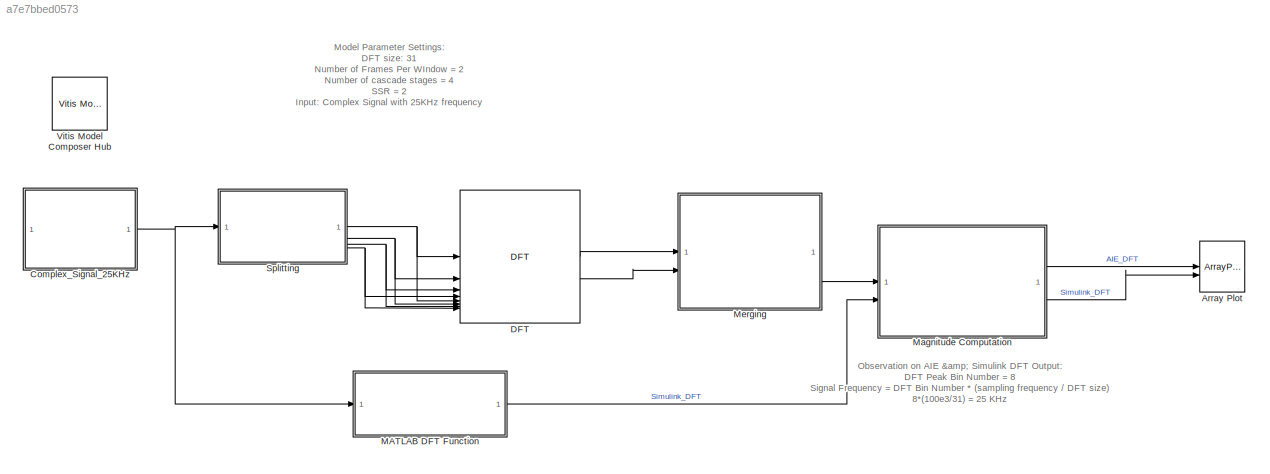
MODEL slx_a7e7bbed0573
KIND model
CONFIG AbsTol = auto
CONFIG EnableMultiTasking = off
CONFIG FixedStep = auto
CONFIG MaxStep = auto
CONFIG MinStep = auto
CONFIG RelTol = 1e-3
CONFIG SampleTimeConstraint = Unconstrained
CONFIG SolverName = VariableStepAuto
CONFIG StartFcn = FramesPerWindow = 2;
CONFIG StartTime = 0.0
CONFIG StopTime = 0.1
BLOCK [ArrayPlot] Array Plot
  GraphicalSettings = {"Style":{"BackgroundColor":[0.12941176470588237,0.12941176470588237,0.12941176470588237],"AxesColor":[0.070588235294117646,0.070588235294117646,0.070588235294117646],"LabelsColor":[0.85098039215686272,0.85098039215686272,0.85098039215686272],"PreserveColors":false,"Visible":[true,true],"LineStyle":["-","-"],"LineColor":[[1,0.90980392156862744,0.39215686274509803],[0.14901960784313725,0.5490196078...<+635ch>
  NumInputPorts = 2
  ScopeFrameLocation = window
  ShowLegend = on
  Visible = on
  WasSavedAsWebScope = on
  WindowPosition = [1.000000,1.000000,1280.000000,744.000000,]
  YLimits = [-36.25 346.25]
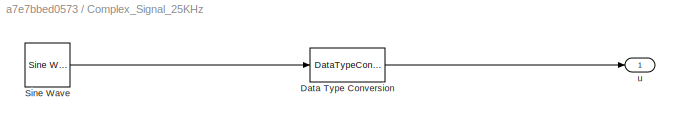
BLOCK [SubSystem] Complex_Signal_25KHz
BLOCK [DataTypeConversion] Complex_Signal_25KHz/Data Type Conversion
  ConvertRealWorld = Stored Integer (SI)
  OutDataTypeStr = int16
  RndMeth = Floor
  SaturateOnIntegerOverflow = off
BLOCK [Reference] Complex_Signal_25KHz/Sine Wave  REF=dspsrcs4/Sine Wave
  SourceBlock = dspsrcs4/Sine Wave
  SourceType = Sine Wave
BLOCK [Outport] Complex_Signal_25KHz/u
BLOCK [Reference] DFT  REF=aieDSP/DFT
  SourceBlock = aieDSP/DFT
  SourceType = DFT
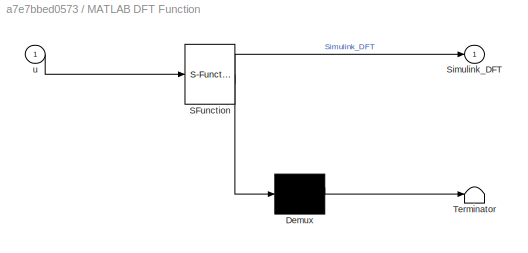
BLOCK [SubSystem] MATLAB DFT Function
  ErrorFcn = Stateflow.Translate.translate
  PermitHierarchicalResolution = ExplicitOnly
  SFBlockType = MATLAB Function
  TreatAsAtomicUnit = on
BLOCK [Demux] MATLAB DFT Function/ Demux 
  Outputs = 1
BLOCK [S-Function] MATLAB DFT Function/ SFunction 
  EnableBusSupport = off
  FunctionName = sf_sfun
  PortCounts = [1 2]
  SFcnIsStateOwnerBlock = off
  SFunctionDeploymentMode = off
  Tag = Stateflow S-Function 2
BLOCK [Terminator] MATLAB DFT Function/ Terminator 
BLOCK [Outport] MATLAB DFT Function/Simulink_DFT
BLOCK [Inport] MATLAB DFT Function/u
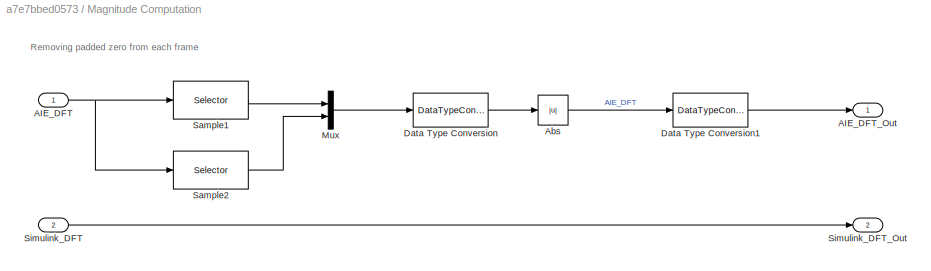
BLOCK [SubSystem] Magnitude Computation
BLOCK [Inport] Magnitude Computation/AIE_DFT
BLOCK [Outport] Magnitude Computation/AIE_DFT_Out
BLOCK [Abs] Magnitude Computation/Abs
  SaturateOnIntegerOverflow = off
BLOCK [DataTypeConversion] Magnitude Computation/Data Type Conversion
  OutDataTypeStr = single
  RndMeth = Floor
  SaturateOnIntegerOverflow = off
BLOCK [DataTypeConversion] Magnitude Computation/Data Type Conversion1
  OutDataTypeStr = int16
  RndMeth = Floor
  SaturateOnIntegerOverflow = off
BLOCK [Mux] Magnitude Computation/Mux
  DisplayOption = bar
  Inputs = 2
BLOCK [Selector] Magnitude Computation/Sample1
  IndexMode = Zero-based
  IndexOptions = Index vector (dialog)
  Indices = 0:1:30
  InputPortWidth = 64
  OutputSizes = 1
BLOCK [Selector] Magnitude Computation/Sample2
  IndexMode = Zero-based
  IndexOptions = Index vector (dialog)
  Indices = 32:1:62
  InputPortWidth = 64
  OutputSizes = 1
BLOCK [Inport] Magnitude Computation/Simulink_DFT
  Port = 2
BLOCK [Outport] Magnitude Computation/Simulink_DFT_Out
  Port = 2
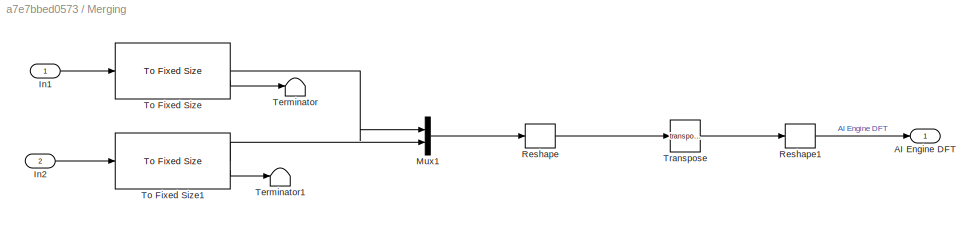
BLOCK [SubSystem] Merging
BLOCK [Outport] Merging/AI Engine DFT
BLOCK [Inport] Merging/In1
BLOCK [Inport] Merging/In2
  Port = 2
BLOCK [Mux] Merging/Mux1
  DisplayOption = bar
  Inputs = 2
BLOCK [Reshape] Merging/Reshape
  OutputDimensionality = Customize
  OutputDimensions = [32, 2]
BLOCK [Reshape] Merging/Reshape1
  OutputDimensions = [1, 10]
BLOCK [Terminator] Merging/Terminator
BLOCK [Terminator] Merging/Terminator1
BLOCK [Reference] Merging/To Fixed Size  REF=aieUtilities/To Fixed Size
  SourceBlock = aieUtilities/To Fixed Size
  SourceType = To Fixed Size
BLOCK [Reference] Merging/To Fixed Size1  REF=aieUtilities/To Fixed Size
  SourceBlock = aieUtilities/To Fixed Size
  SourceType = To Fixed Size
BLOCK [Math] Merging/Transpose
  Operator = transpose
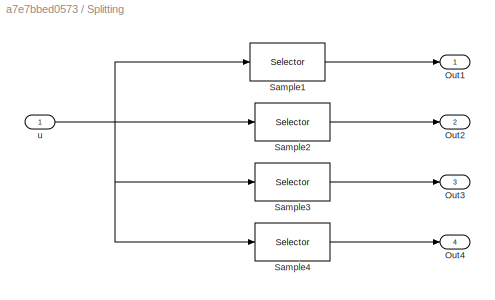
BLOCK [SubSystem] Splitting
BLOCK [Outport] Splitting/Out1
BLOCK [Outport] Splitting/Out2
  Port = 2
BLOCK [Outport] Splitting/Out3
  Port = 3
BLOCK [Outport] Splitting/Out4
  Port = 4
BLOCK [Selector] Splitting/Sample1
  IndexOptions = Index vector (dialog)
  Indices = 1:4:64
  InputPortWidth = 64
  OutputSizes = 1
BLOCK [Selector] Splitting/Sample2
  IndexOptions = Index vector (dialog)
  Indices = 2:4:64
  InputPortWidth = 64
  OutputSizes = 1
BLOCK [Selector] Splitting/Sample3
  IndexOptions = Index vector (dialog)
  Indices = 3:4:64
  InputPortWidth = 64
  OutputSizes = 1
BLOCK [Selector] Splitting/Sample4
  IndexOptions = Index vector (dialog)
  Indices = 4:4:64
  InputPortWidth = 64
  OutputSizes = 1
BLOCK [Inport] Splitting/u
BLOCK [Reference] Vitis Model Composer Hub  REF=vmcUtilities/Vitis Model Composer Hub
  SourceBlock = vmcUtilities/Vitis Model Composer Hub
  SourceType = VMC Hub
  Tag = genX
  UserDataPersistent = on
ANNOTATION (root): Model Parameter Settings: DFT size: 31 Number of Frames Per WIndow = 2 Number of cascade stages = 4 SSR = 2 Input: Complex Signal with 25KHz frequency Input sampling rate: 100KHz
ANNOTATION (root): Observation on AIE & Simulink DFT Output: DFT Peak Bin Number = 8 Signal Frequency = DFT Bin Number * (sampling frequency / DFT size) 8*(100e3/31) = 25 KHz
ANNOTATION Magnitude Computation: Removing padded zero from each frame
LINE Complex_Signal_25KHz/Data Type Conversion:1 -> Complex_Signal_25KHz/u:1
LINE Complex_Signal_25KHz/Sine Wave:1 -> Complex_Signal_25KHz/Data Type Conversion:1
NET Complex_Signal_25KHz:1 -> MATLAB DFT Function:1, Splitting:1
LINE DFT:1 -> Merging:1
LINE DFT:2 -> Merging:2
LINE MATLAB DFT Function:1 -> Magnitude Computation:2
NET Magnitude Computation/AIE_DFT:1 -> Magnitude Computation/Sample1:1, Magnitude Computation/Sample2:1
LINE Magnitude Computation/Abs:1 -> Magnitude Computation/Data Type Conversion1:1
LINE Magnitude Computation/Data Type Conversion1:1 -> Magnitude Computation/AIE_DFT_Out:1
LINE Magnitude Computation/Data Type Conversion:1 -> Magnitude Computation/Abs:1
LINE Magnitude Computation/Mux:1 -> Magnitude Computation/Data Type Conversion:1
LINE Magnitude Computation/Sample1:1 -> Magnitude Computation/Mux:1
LINE Magnitude Computation/Sample2:1 -> Magnitude Computation/Mux:2
LINE Magnitude Computation/Simulink_DFT:1 -> Magnitude Computation/Simulink_DFT_Out:1
LINE Magnitude Computation:1 -> Array Plot:1
LINE Magnitude Computation:2 -> Array Plot:2
LINE Merging/In1:1 -> Merging/To Fixed Size:1
LINE Merging/In2:1 -> Merging/To Fixed Size1:1
LINE Merging/Mux1:1 -> Merging/Reshape:1
LINE Merging/Reshape1:1 -> Merging/AI Engine DFT:1
LINE Merging/Reshape:1 -> Merging/Transpose:1
LINE Merging/To Fixed Size1:1 -> Merging/Mux1:2
LINE Merging/To Fixed Size1:2 -> Merging/Terminator1:1
LINE Merging/To Fixed Size:1 -> Merging/Mux1:1
LINE Merging/To Fixed Size:2 -> Merging/Terminator:1
LINE Merging/Transpose:1 -> Merging/Reshape1:1
LINE Merging:1 -> Magnitude Computation:1
LINE Splitting/Sample1:1 -> Splitting/Out1:1
LINE Splitting/Sample2:1 -> Splitting/Out2:1
LINE Splitting/Sample3:1 -> Splitting/Out3:1
LINE Splitting/Sample4:1 -> Splitting/Out4:1
NET Splitting/u:1 -> Splitting/Sample1:1, Splitting/Sample2:1, Splitting/Sample3:1, Splitting/Sample4:1
NET Splitting:1 -> DFT:1, DFT:5
NET Splitting:2 -> DFT:2, DFT:6
NET Splitting:3 -> DFT:3, DFT:7
NET Splitting:4 -> DFT:4, DFT:8
note: NET lines group one-source signal fan-out (src -> all destinations, sorted); 1:1 wires keep LINE
CHART MATLAB DFT Function states=1 transitions=1
  STATE_LABEL 'eML_blk_kernel()'
  STATE_LABEL 'SCRIPT:\n\nfunction Simulink_DFT  = fcn(u)\n\nDFT_Size = 31; % DFT Size\nFramesPerWindow = 2; %No.of Frames Per Window\nu = single(u);\n\nX = single(complex(zeros(DFT_Size,FramesPerWindow)));\n\nfor m = 1:1:FramesPerWindow\nfor k = 0:DFT_Size-1\n    for n = 0:DFT_Size-1\n        X(k+1,m) = X(k+1,m) + u(n+1)*exp(-1i*2*pi*n*k/DFT_Size);\n    end\nend\nend\n\nSimulink_DFT = int16(abs(reshape(X,DFT_Size*FramesPerWindow...<+7ch>'
CHART  states=0 transitions=0
